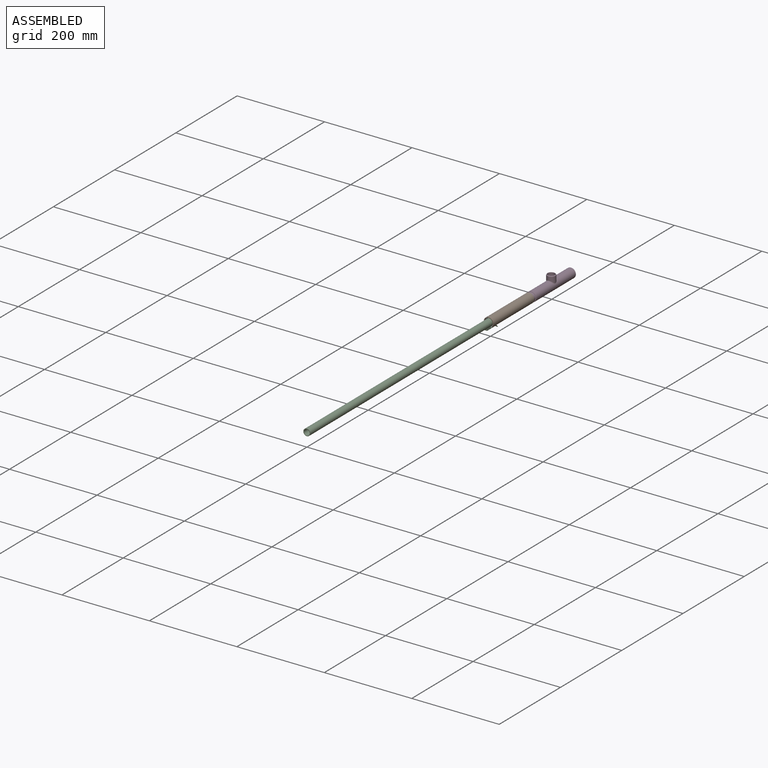
[diagram: assembled view]
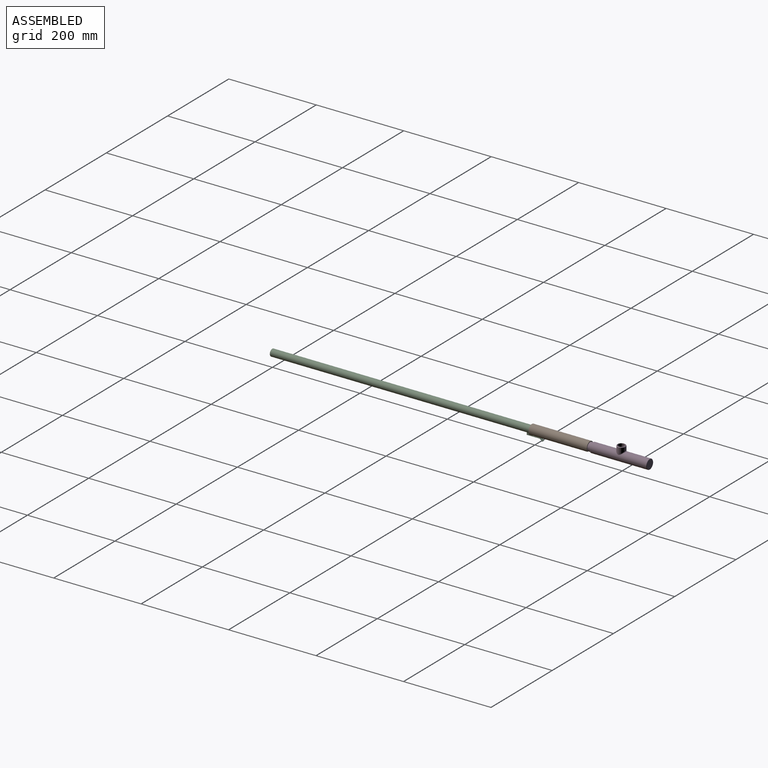
[diagram: assembled view, second angle]
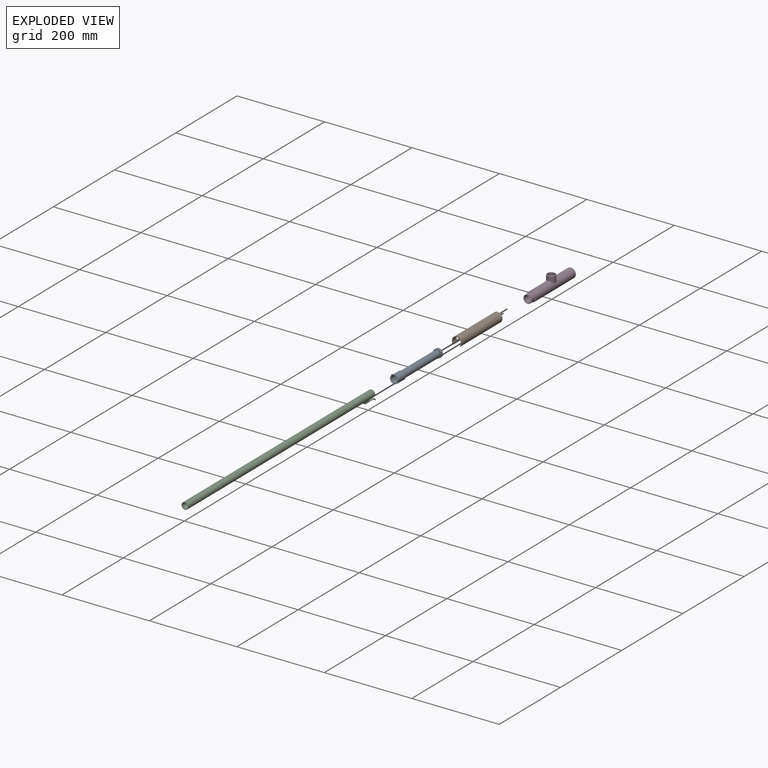
[diagram: exploded view]
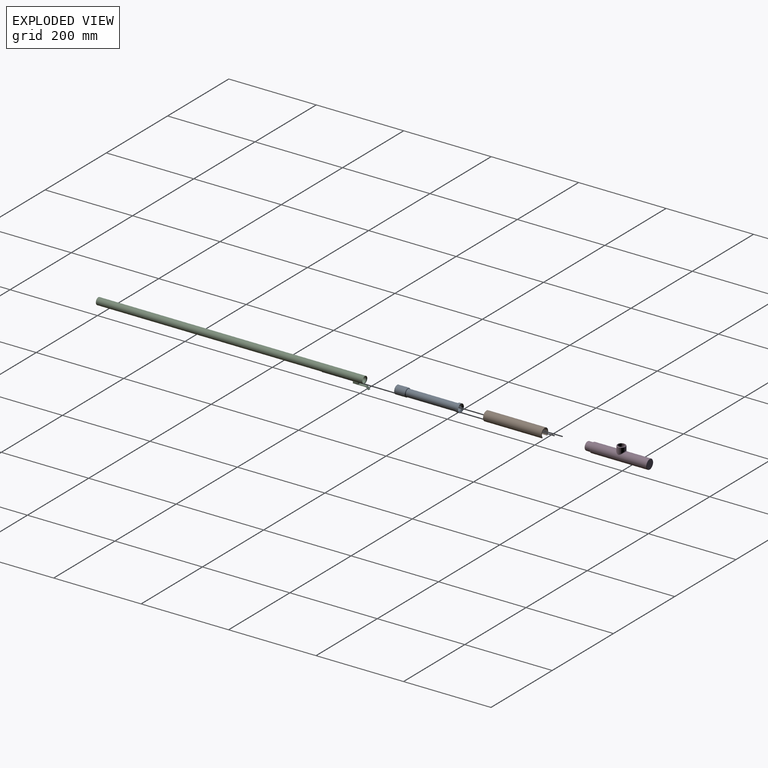
[diagram: exploded view, second angle]
ASSEMBLY  parts=4 mates=3
PART A: 12 faces, bbox 24.6x146.1x20.6 mm
  f0: cylinder r=9.53mm len=19.05mm, axis (0,-1,0), area 380mm2, adj f1,f8
  f1: plane 19.05x19.05mm, normal (0,-1,0), area 87.1mm2, adj f0,f2
  f2: cylinder r=7.94mm len=114.3mm, axis (0,-1,0), area 5700.5mm2, adj f1,f9
  f3: cylinder r=9.53mm len=23.81mm, axis (0,-1,0), area 1393.1mm2, adj f7,f9,f10
  f4: cylinder r=7.94mm len=15.88mm, axis (0,-1,0), area 554.2mm2, adj f5,f7
  f5: plane 15.88x15.88mm, normal (0,-1,0), area 71.3mm2, adj f4,f6
  f6: cylinder r=6.35mm len=130.18mm, axis (0,-1,0), area 5193.8mm2, adj f5,f8
  f7: cone r=7.94mm half-angle=45deg, axis (0,-1,0), area 123.2mm2, adj f3,f4
  f8: cone r=9.53mm half-angle=45deg, axis (0,1,0), area 223.9mm2, adj f0,f6
  f9: torus R=7.94mm, axis (0,-1,0), area 140.2mm2, adj f2,f3
  f10: cylinder r=3.17mm len=6.35mm, axis (1,0,0), area 100.4mm2, adj f3,f11
  f11: plane 6.35x6.35mm, normal (-1,0,0), area 31.7mm2, adj f10
PART B: 10 faces, bbox 22.2x133.4x19 mm
  f0: cylinder r=9.53mm len=133.35mm, axis (0,-1,0), area 5295.6mm2, adj f2,f3,f4,f5,f6,f7,f8,f9
  f1: cylinder r=11.11mm len=133.35mm, axis (0,-1,0), area 6296.8mm2, adj f2,f3,f4,f5,f6,f7,f8,f9
  f2: plane 22.23x18.97mm, normal (0,1,0), area 77.2mm2, adj f0,f1,f4,f5
  f3: plane 22.23x18.97mm, normal (0,-1,0), area 77.2mm2, adj f0,f1,f4,f5
  f4: plane 133.35x1.12mm, normal (-0.71,0,-0.71), area 211.7mm2, adj f0,f1,f2,f3
  f5: plane 133.35x1.12mm, normal (0.71,0,-0.71), area 211.7mm2, adj f0,f1,f2,f3
  f6: cylinder r=3.17mm len=6.35mm, axis (1,0,0), area 16.2mm2, adj f0,f1,f7,f9
  f7: plane 101.6x1.67mm, normal (0,0,-1), area 169.6mm2, adj f0,f1,f6,f8
  f8: cylinder r=3.17mm len=6.35mm, axis (1,0,0), area 16.2mm2, adj f0,f1,f7,f9
  f9: plane 101.6x1.67mm, normal (0,0,1), area 169.6mm2, adj f0,f1,f6,f8
PART C: 55 faces, bbox 15.9x620.2x25.4 mm
  f0: plane 35.16x9.54mm, normal (1,0,0), area 73.2mm2, adj f13,f16,f20,f21,f25,f30,f34,f35
  f1: cylinder r=7.94mm len=609.6mm, axis (0,1,0), area 30308.1mm2, adj f3,f12,f41,f42,f45,f46,f49,f50
  f2: cylinder r=6.35mm len=607.45mm, axis (0,1,0), area 24236.2mm2, adj f53,f54
  f3: plane 15.88x15.88mm, normal (0,-1,0), area 54.9mm2, adj f1,f54
  f4: plane 35.16x9.54mm, normal (-1,0,0), area 73.2mm2, adj f18,f27,f28,f32,f37,f38,f44,f47
  f5: plane 5.56x4.7mm, normal (0,-0.69,-0.72), area 36.3mm2, adj f16,f17,f26,f27
  f6: plane 5.56x0.3mm, normal (0,0,-1), area 1.7mm2, adj f13,f17,f18,f19
  f7: plane 5.56x5.56mm, normal (0,0.71,0.71), area 43.7mm2, adj f19,f20,f28,f29
  f8: plane 16.9x5.56mm, normal (0,0,1), area 93.9mm2, adj f29,f30,f38,f39
  f9: plane 5.56x2.86mm, normal (0,1,0), area 14.1mm2, adj f39,f40,f48,f49
  f10: plane 5.56x4.45mm, normal (0,-1,0), area 22.9mm2, adj f35,f36,f46,f47
  f11: plane 29.61x5.56mm, normal (0,0,-1), area 164.5mm2, adj f25,f26,f36,f37
  f12: cone r=7.94mm half-angle=45deg, axis (0,1,0), area 94.2mm2, adj f1,f53
  f13: cylinder r=0.4mm len=0.4mm, axis (0,-1,0), area 0.2mm2, adj f0,f6,f14,f15
  f14: sphere r=0.4mm, area 0.1mm2, adj f13,f16,f17
  f15: sphere r=0.4mm, area 0.4mm2, adj f13,f19,f20
  f16: cylinder r=0.4mm len=4.98mm, axis (0,-0.72,0.69), area 4.1mm2, adj f0,f5,f14,f21
  f17: cylinder r=0.4mm len=5.56mm, axis (-1,0,0), area 1.7mm2, adj f5,f6,f14,f22
  f18: cylinder r=0.4mm len=0.4mm, axis (0,1,0), area 0.2mm2, adj f4,f6,f22,f23
  f19: cylinder r=0.4mm len=5.56mm, axis (1,0,0), area 5.2mm2, adj f6,f7,f15,f23
  f20: cylinder r=0.4mm len=5.84mm, axis (0,0.71,-0.71), area 4.9mm2, adj f0,f7,f15,f24
  f21: torus R=0.79mm, axis (1,0,0), area 0.3mm2, adj f0,f16,f25,f26
  f22: sphere r=0.4mm, area 0.1mm2, adj f17,f18,f27
  f23: sphere r=0.4mm, area 0.4mm2, adj f18,f19,f28
  f24: sphere r=0.4mm, area 0.1mm2, adj f20,f29,f30
  f25: cylinder r=0.4mm len=29.61mm, axis (0,-1,0), area 18.5mm2, adj f0,f11,f21,f31
  f26: cylinder r=0.4mm len=5.56mm, axis (-1,0,0), area 1.7mm2, adj f5,f11,f21,f32
  f27: cylinder r=0.4mm len=4.98mm, axis (0,0.72,-0.69), area 4.1mm2, adj f4,f5,f22,f32
  f28: cylinder r=0.4mm len=5.84mm, axis (0,-0.71,0.71), area 4.9mm2, adj f4,f7,f23,f33
  f29: cylinder r=0.4mm len=5.56mm, axis (-1,0,0), area 1.7mm2, adj f7,f8,f24,f33
  f30: cylinder r=0.4mm len=16.9mm, axis (0,1,0), area 10.5mm2, adj f0,f8,f24,f34
  f31: sphere r=0.4mm, area 0.2mm2, adj f25,f35,f36
  f32: torus R=0.79mm, axis (1,0,0), area 0.3mm2, adj f4,f26,f27,f37
  f33: sphere r=0.4mm, area 0.1mm2, adj f28,f29,f38
  f34: torus R=0.79mm, axis (1,0,0), area 0.5mm2, adj f0,f30,f39,f40
  f35: cylinder r=0.4mm len=4.77mm, axis (0,0,1), area 2.9mm2, adj f0,f10,f31,f42
  f36: cylinder r=0.4mm len=5.56mm, axis (1,0,0), area 3.5mm2, adj f10,f11,f31,f43
  f37: cylinder r=0.4mm len=29.61mm, axis (0,1,0), area 18.5mm2, adj f4,f11,f32,f43
  f38: cylinder r=0.4mm len=16.9mm, axis (0,-1,0), area 10.5mm2, adj f4,f8,f33,f44
  f39: cylinder r=0.4mm len=5.56mm, axis (-1,0,0), area 3.5mm2, adj f8,f9,f34,f44
  f40: cylinder r=0.4mm len=3.19mm, axis (0,0,-1), area 1.9mm2, adj f0,f9,f34,f45
  f41: cylinder r=0.4mm len=11.91mm, axis (0,1,0), area 5.3mm2, adj f0,f1,f42,f45
  f42: bspline ~0.93x0.85mm, area 0.5mm2, adj f1,f35,f41,f46
  f43: sphere r=0.4mm, area 0.2mm2, adj f36,f37,f47
  f44: torus R=0.79mm, axis (1,0,0), area 0.5mm2, adj f4,f38,f39,f48
  f45: bspline ~0.96x0.85mm, area 0.5mm2, adj f1,f40,f41,f49
  f46: torus R=8.33mm, axis (0,1,0), area 3.4mm2, adj f1,f10,f42,f50
  f47: cylinder r=0.4mm len=4.77mm, axis (0,0,-1), area 2.9mm2, adj f4,f10,f43,f50
  f48: cylinder r=0.4mm len=3.19mm, axis (0,0,1), area 1.9mm2, adj f4,f9,f44,f51
  f49: torus R=8.33mm, axis (0,-1,0), area 3.4mm2, adj f1,f9,f45,f51
  f50: bspline ~0.96x0.85mm, area 0.5mm2, adj f1,f46,f47,f52
  f51: bspline ~0.93x0.85mm, area 0.5mm2, adj f1,f48,f49,f52
  f52: cylinder r=0.4mm len=11.91mm, axis (0,1,0), area 5.3mm2, adj f1,f4,f50,f51
  f53: torus R=6.75mm, axis (0,-1,0), area 12.5mm2, adj f2,f12
  f54: torus R=6.75mm, axis (0,-1,0), area 25.4mm2, adj f2,f3
PART D: 18 faces, bbox 24.1x142.9x34.3 mm
  f0: cylinder r=9.53mm len=125.41mm, axis (0,-1,0), area 7227.9mm2, adj f11,f12,f17
  f1: cylinder r=11.11mm len=128.59mm, axis (0,-1,0), area 8589.4mm2, adj f7,f9,f15
  f2: plane 15.88x15.88mm, normal (0,-1,0), area 197.9mm2, adj f12
  f3: plane 20.64x20.64mm, normal (0,1,0), area 334.5mm2, adj f7
  f4: cylinder r=9.53mm len=19.05mm, axis (0,-1,0), area 665.1mm2, adj f8,f10
  f5: plane 17.46x17.46mm, normal (0,-1,0), area 41.6mm2, adj f6,f10
  f6: cylinder r=7.94mm len=15.88mm, axis (0,-1,0), area 633.4mm2, adj f5,f11
  f7: torus R=10.32mm, axis (0,1,0), area 84.8mm2, adj f1,f3
  f8: torus R=10.32mm, axis (0,1,0), area 76.9mm2, adj f4,f9
  f9: torus R=10.32mm, axis (0,1,0), area 84.8mm2, adj f1,f8
  f10: torus R=8.73mm, axis (0,-1,0), area 72.4mm2, adj f4,f5
  f11: torus R=9.53mm, axis (0,1,0), area 133.4mm2, adj f0,f6
  f12: torus R=7.94mm, axis (0,1,0), area 140.2mm2, adj f0,f2
  f13: cylinder r=9.53mm len=19.05mm, axis (0,0,-1), area 654.1mm2, adj f15,f16
  f14: cylinder r=7.94mm len=16.5mm, axis (0,0,1), area 677.7mm2, adj f16,f17
  f15: bspline ~22.24x19.45mm, area 113.1mm2, adj f1,f13
  f16: torus R=7.94mm, axis (0,0,1), area 140.2mm2, adj f13,f14
  f17: bspline ~19.07x16.34mm, area 95.6mm2, adj f0,f14
PLACE A t=(0,596.5,0)mm
PLACE B t=(0,599.68,0)mm
PLACE C t=(0,609.2,0)mm
PLACE D t=(0,798.12,0)mm
MATE slider A.f0 <-> C.f1  axis (0,-1,0) through (0,609.2,0)mm
MATE fastened D.f0 <-> B.f0  axis (0,-1,0) through (0,720.33,0)mm
MATE fastened B.f0 <-> C.f1  axis (0,-1,0) through (0,593.33,0)mm
